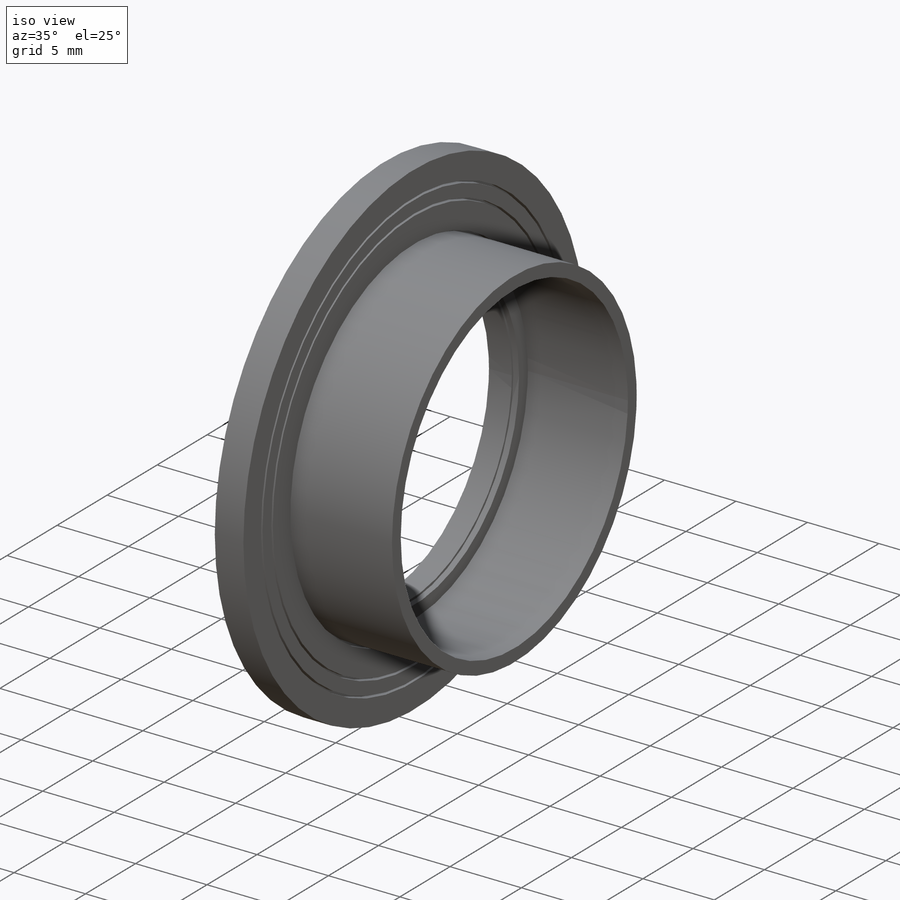
[diagram: iso view]
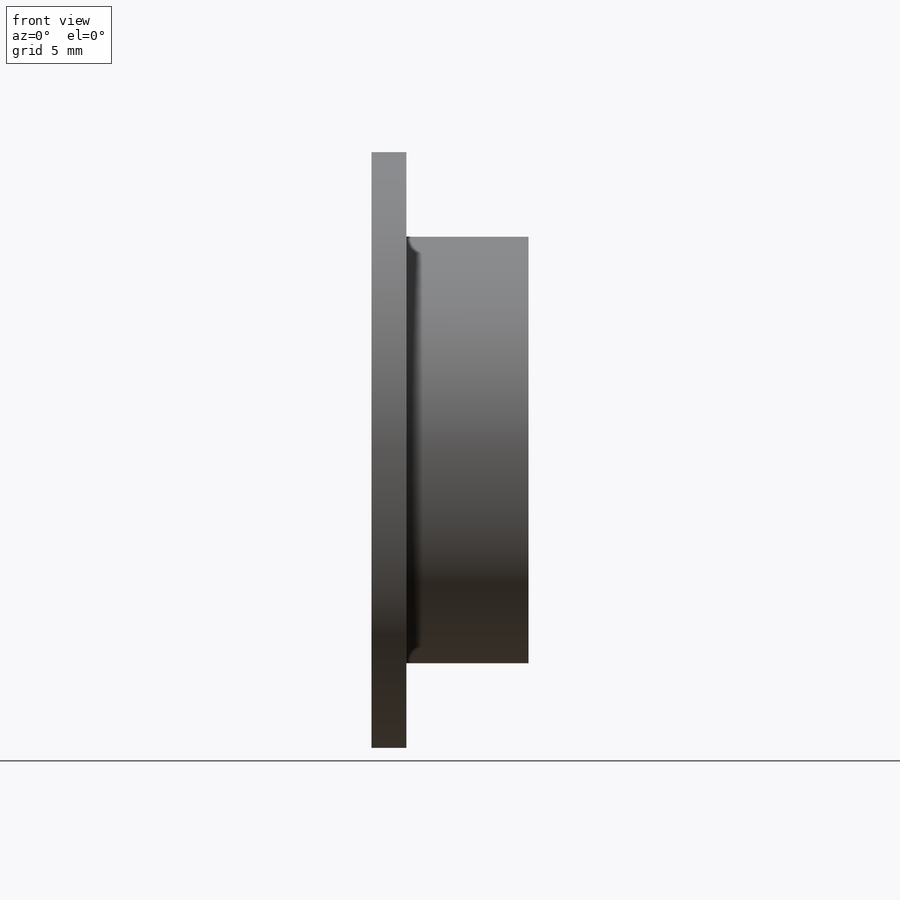
[diagram: front view]
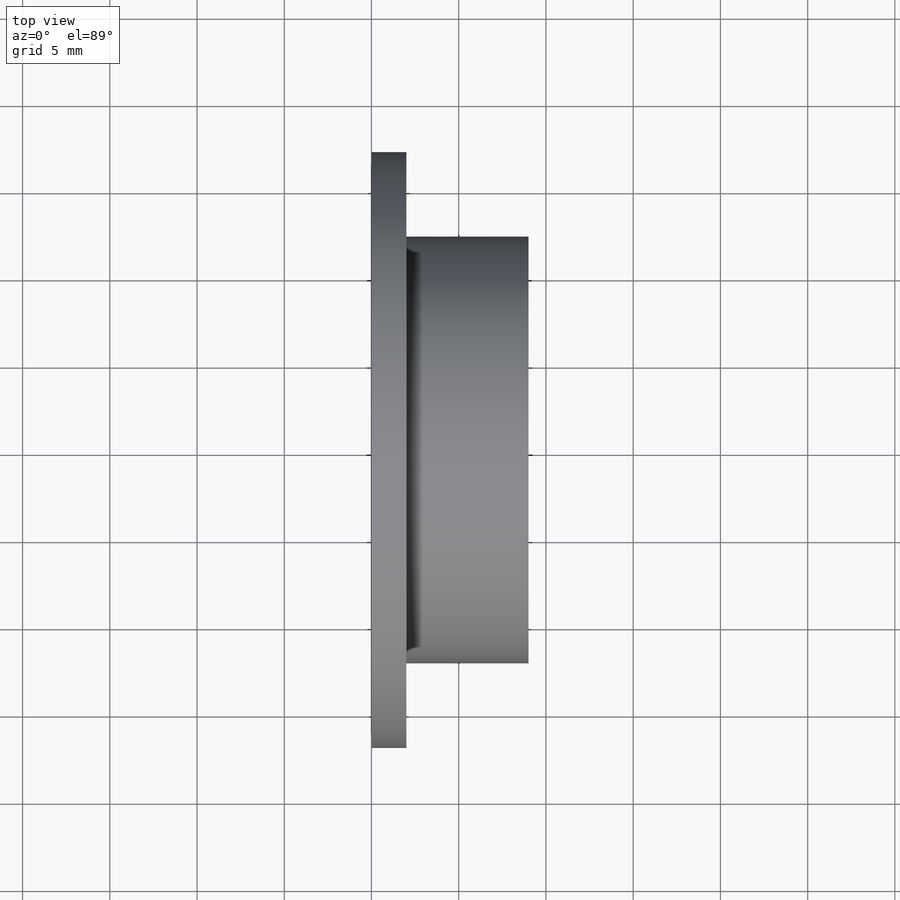
[diagram: top view]
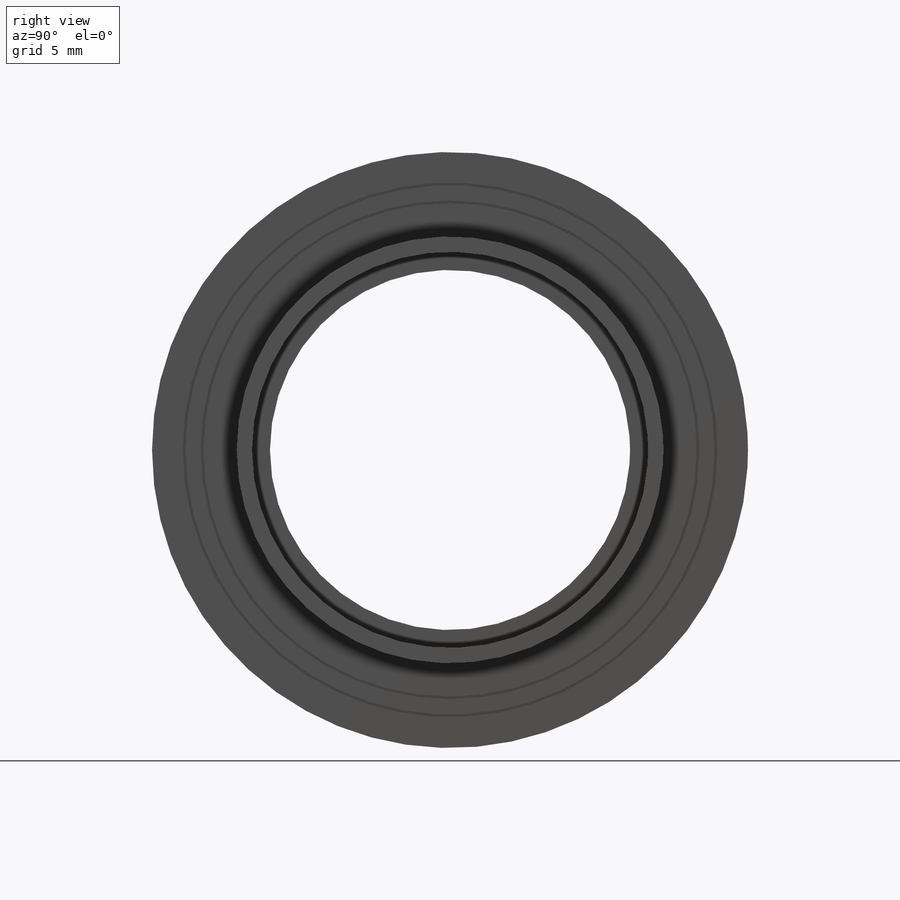
[diagram: right view]
SOLIDWORKS PART (.sldprt)
format: sldprt  version: not decoded by parser v0  size: 203,264 bytes
history: native  units: mm
features: sketch x6, cut_extrude x4, extrude x2, material x1 (+11 scaffold rows collapsed)
feature tree (24):
  scaffold x11  (default folders/planes/origin — collapsed)
  material  "Material <not specified>"
  sketch  "Sketch1"  dims[D1=17.0mm]
  extrude  "Boss-Extrude1"  Depth=2mm
  sketch  "Sketch2"  dims[c1.D1=~2.190115mm c1.D2=11.2mm c2.D1=0.88mm]
  extrude  "Boss-Extrude2"  Depth=7mm
  sketch  "Sketch3"  dims[c1.D1=1.76mm c1.D2=0.15mm c1.D3=0.15mm c1.D4=1.76mm c1.D5=0.88mm c2.D1=1.76mm]
  cut_extrude  "Cut-Extrude1"  Depth=0.4mm
  sketch  "Sketch12"  dims[D1=0.15mm]
  cut_extrude  "Cut-Extrude7"  Depth=0.4mm
  sketch  "Sketch13"  dims[D1=1.76mm D2=0.15mm]
  cut_extrude  "Cut-Extrude8"  Depth=0.4mm
  sketch  "Sketch14"  dims[D1=0.88mm D2=0.15mm]
  cut_extrude  "Cut-Extrude9"  Depth=0.4mm
decode coverage: 12 of 12 modeling features carry decoded parameters
note: ~ marks probable driven/reference dimensions
note: suppression state not decoded; provenance and decode notes live in map.json
